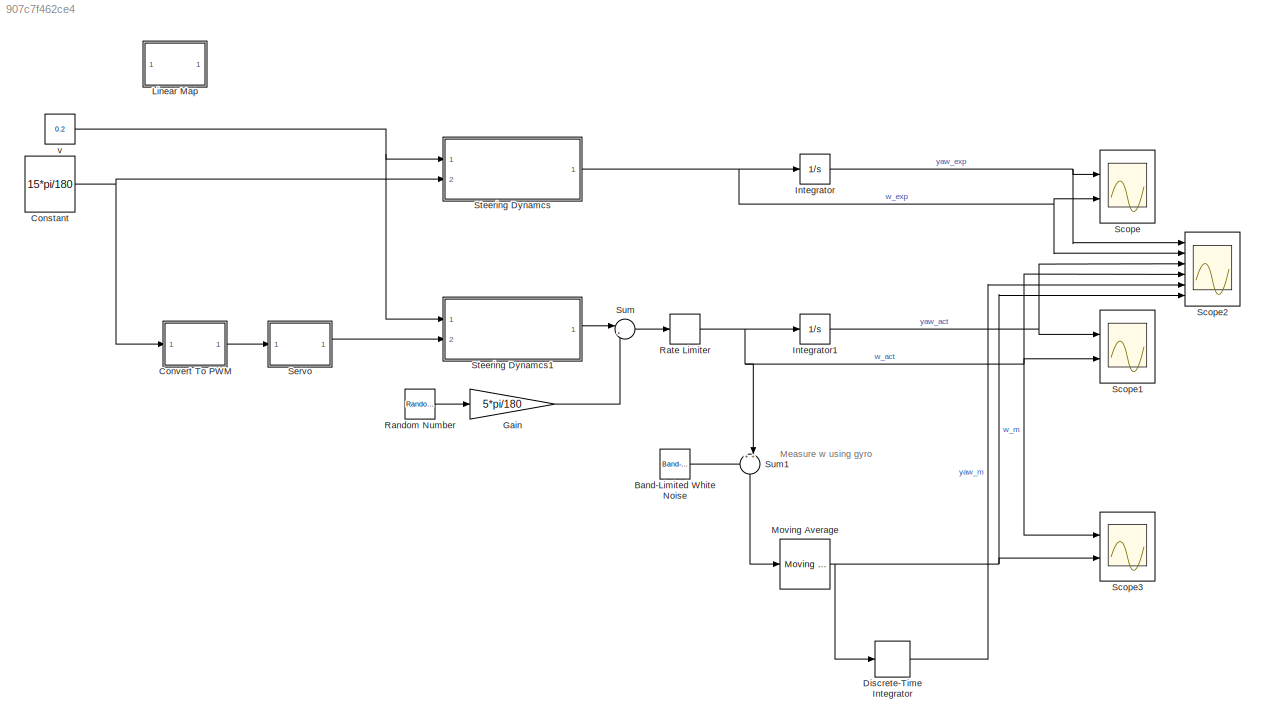
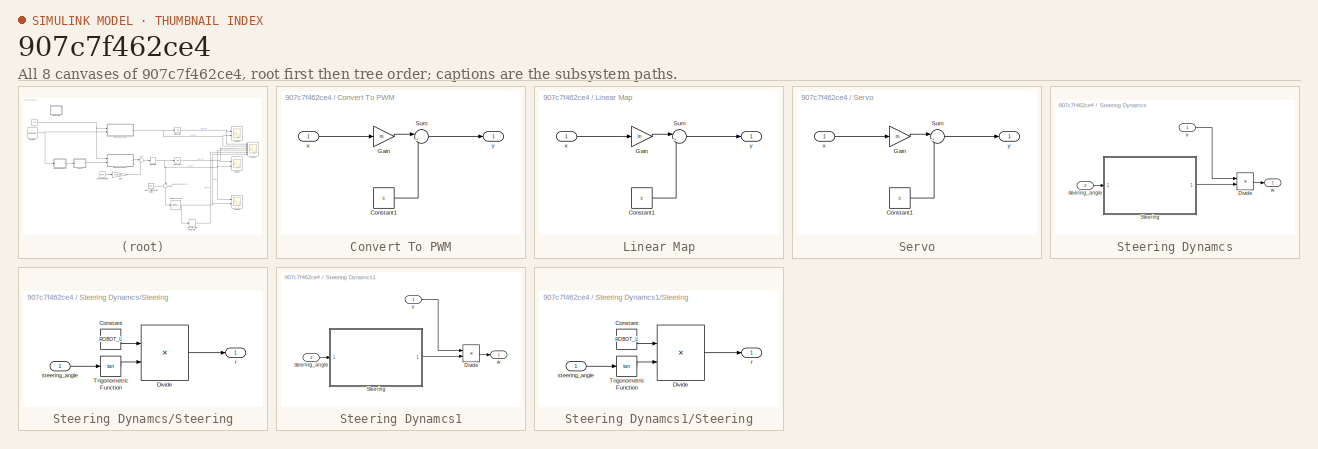
[diagram: thumbnail index - all 8 canvases of the model, root first then tree order]
MODEL slx_907c7f462ce4
KIND model
CONFIG AbsTol = auto
CONFIG EnableMultiTasking = off
CONFIG FixedStep = auto
CONFIG MaxStep = auto
CONFIG MinStep = auto
CONFIG RelTol = 1e-3
CONFIG SampleTimeConstraint = Unconstrained
CONFIG SolverName = VariableStepAuto
CONFIG StartTime = 0.0
CONFIG StopTime = 10.0
WORKSPACE source: mxarray member
WORKSPACE ROBOT_L = 0.14
WORKSPACE c = 0
WORKSPACE m = 1
BLOCK [Reference] Band-Limited White Noise  REF=simulink/Sources/Band-Limited
White Noise
  Ports = [0, 1]
  SourceBlock = simulink/Sources/Band-Limited\nWhite Noise
  SourceProductBaseCode = SL
  SourceType = Band-Limited White Noise.
BLOCK [Constant] Constant
  Value = 15*pi/180
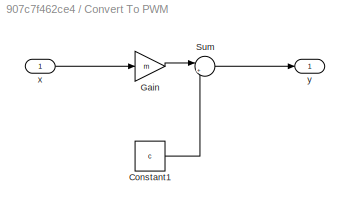
BLOCK [SubSystem] Convert To PWM
  Ports = [1, 1]
  RequestExecContextInheritance = off
BLOCK [Constant] Convert To PWM/Constant1
  Value = c
BLOCK [Gain] Convert To PWM/Gain
  Gain = m
BLOCK [Sum] Convert To PWM/Sum
  Inputs = |++
  Ports = [2, 1]
BLOCK [Inport] Convert To PWM/x
BLOCK [Outport] Convert To PWM/y
BLOCK [DiscreteIntegrator] Discrete-Time Integrator
  ICPrevOutput = DiscIntNeverNeededParam
  ICPrevScaledInput = DiscIntNeverNeededParam
  InitialConditionSetting = Auto
  Ports = [1, 1]
  SampleTime = 0.01
BLOCK [Gain] Gain
  Gain = 5*pi/180
BLOCK [Integrator] Integrator
  Ports = [1, 1]
BLOCK [Integrator] Integrator1
  Ports = [1, 1]
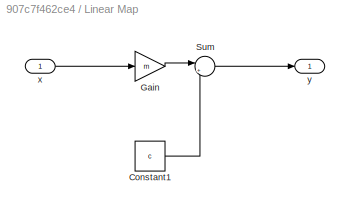
BLOCK [SubSystem] Linear Map
  Ports = [1, 1]
  RequestExecContextInheritance = off
BLOCK [Constant] Linear Map/Constant1
  Value = c
BLOCK [Gain] Linear Map/Gain
  Gain = m
BLOCK [Sum] Linear Map/Sum
  Inputs = |++
  Ports = [2, 1]
BLOCK [Inport] Linear Map/x
BLOCK [Outport] Linear Map/y
BLOCK [Reference] Moving Average  REF=dspstat3/Moving
Average
  Ports = [1, 1]
  SourceBlock = dspstat3/Moving\nAverage
  SourceProductBaseCode = DS
  SourceType = dsp.simulink.MovingAverage
BLOCK [RandomNumber] Random Number
  SampleTime = 0.5
BLOCK [RateLimiter] Rate Limiter
  FallingSlewLimit = -0.5*2*pi
  RisingSlewLimit = 0.5*2*pi
  SampleTimeMode = inherited
BLOCK [Scope] Scope
  Floating = off
  NumInputPorts = 2
  Ports = [2]
  ScopeSpecificationString = Simulink.scopes.TimeScopeBlockCfg('CurrentConfiguration', extmgr.ConfigurationSet(extmgr.Configuration('Core','General UI',true),extmgr.Configuration('Core','Source UI',true),extmgr.Configuration('Sources','WiredSimulink',true),extmgr.Configuration('Visuals','Time Domain',true,'SerializedDisplays',{struct('MinYLimReal','-0.47848','MaxYLimReal','4.30633','YLabelReal','','MinYLimMag','0.00000','MaxY...<+1363ch>
BLOCK [Scope] Scope1
  Floating = off
  NumInputPorts = 2
  Ports = [2]
  ScopeSpecificationString = Simulink.scopes.TimeScopeBlockCfg('CurrentConfiguration', extmgr.ConfigurationSet(extmgr.Configuration('Core','General UI',true),extmgr.Configuration('Core','Source UI',true),extmgr.Configuration('Sources','WiredSimulink',true,'DataLoggingVariableName','ScopeData1'),extmgr.Configuration('Visuals','Time Domain',true,'SerializedDisplays',{struct('MinYLimReal','-0.55545','MaxYLimReal','4.99902','YLab...<+1762ch>
BLOCK [Scope] Scope2
  Floating = off
  NumInputPorts = 6
  Ports = [6]
  ScopeSpecificationString = Simulink.scopes.TimeScopeBlockCfg('CurrentConfiguration', extmgr.ConfigurationSet(extmgr.Configuration('Core','General UI',true),extmgr.Configuration('Core','Source UI',true),extmgr.Configuration('Sources','WiredSimulink',true,'DataLoggingVariableName','ScopeData2'),extmgr.Configuration('Visuals','Time Domain',true,'SerializedDisplays',{struct('MinYLimReal','-1.00876','MaxYLimReal','5.04939','YLab...<+1457ch>
BLOCK [Scope] Scope3
  Floating = off
  NumInputPorts = 2
  Ports = [2]
  ScopeSpecificationString = Simulink.scopes.TimeScopeBlockCfg('CurrentConfiguration', extmgr.ConfigurationSet(extmgr.Configuration('Core','General UI',true),extmgr.Configuration('Core','Source UI',true),extmgr.Configuration('Sources','WiredSimulink',true,'DataLoggingVariableName','ScopeData3'),extmgr.Configuration('Visuals','Time Domain',true,'SerializedDisplays',{struct('MinYLimReal','-0.61771','MaxYLimReal','1.52993','YLab...<+1370ch>
BLOCK [SubSystem] Servo
  Ports = [1, 1]
  RequestExecContextInheritance = off
BLOCK [Constant] Servo/Constant1
  Value = c
BLOCK [Gain] Servo/Gain
  Gain = m
BLOCK [Sum] Servo/Sum
  Inputs = |++
  Ports = [2, 1]
BLOCK [Inport] Servo/x
BLOCK [Outport] Servo/y
BLOCK [SubSystem] Steering Dynamcs
  Ports = [2, 1]
  RequestExecContextInheritance = off
BLOCK [Product] Steering Dynamcs/Divide
  Inputs = */
  Ports = [2, 1]
BLOCK [SubSystem] Steering Dynamcs/Steering
  Ports = [1, 1]
  RequestExecContextInheritance = off
BLOCK [Constant] Steering Dynamcs/Steering/Constant
  Value = ROBOT_L
BLOCK [Product] Steering Dynamcs/Steering/Divide
  Inputs = */
  Ports = [2, 1]
BLOCK [Trigonometry] Steering Dynamcs/Steering/Trigonometric Function
  NameLocation = right
  Operator = tan
  Ports = [1, 1]
BLOCK [Outport] Steering Dynamcs/Steering/r
BLOCK [Inport] Steering Dynamcs/Steering/steering_angle
BLOCK [Inport] Steering Dynamcs/steering_angle
  Port = 2
BLOCK [Inport] Steering Dynamcs/v
BLOCK [Outport] Steering Dynamcs/w
BLOCK [SubSystem] Steering Dynamcs1
  Ports = [2, 1]
  RequestExecContextInheritance = off
BLOCK [Product] Steering Dynamcs1/Divide
  Inputs = */
  Ports = [2, 1]
BLOCK [SubSystem] Steering Dynamcs1/Steering
  Ports = [1, 1]
  RequestExecContextInheritance = off
BLOCK [Constant] Steering Dynamcs1/Steering/Constant
  Value = ROBOT_L
BLOCK [Product] Steering Dynamcs1/Steering/Divide
  Inputs = */
  Ports = [2, 1]
BLOCK [Trigonometry] Steering Dynamcs1/Steering/Trigonometric Function
  NameLocation = right
  Operator = tan
  Ports = [1, 1]
BLOCK [Outport] Steering Dynamcs1/Steering/r
BLOCK [Inport] Steering Dynamcs1/Steering/steering_angle
BLOCK [Inport] Steering Dynamcs1/steering_angle
  Port = 2
BLOCK [Inport] Steering Dynamcs1/v
BLOCK [Outport] Steering Dynamcs1/w
BLOCK [Sum] Sum
  Inputs = |++
  Ports = [2, 1]
BLOCK [Sum] Sum1
  Inputs = ++|
  NameLocation = left
  Ports = [2, 1]
BLOCK [Constant] v
  Value = 0.2
ANNOTATION (root): Measure w using gyro
LINE Band-Limited White Noise:1 -> Sum1:1
NET Constant:1 -> Convert To PWM:1, Steering Dynamcs:2
LINE Convert To PWM/Constant1:1 -> Convert To PWM/Sum:2
LINE Convert To PWM/Gain:1 -> Convert To PWM/Sum:1
LINE Convert To PWM/Sum:1 -> Convert To PWM/y:1
LINE Convert To PWM/x:1 -> Convert To PWM/Gain:1
LINE Convert To PWM:1 -> Servo:1
LINE Discrete-Time Integrator:1 -> Scope2:5
LINE Gain:1 -> Sum:2
NET Integrator1:1 -> Scope1:1, Scope2:3
NET Integrator:1 -> Scope2:1, Scope:1
LINE Linear Map/Constant1:1 -> Linear Map/Sum:2
LINE Linear Map/Gain:1 -> Linear Map/Sum:1
LINE Linear Map/Sum:1 -> Linear Map/y:1
LINE Linear Map/x:1 -> Linear Map/Gain:1
NET Moving Average:1 -> Discrete-Time Integrator:1, Scope2:6, Scope3:2
LINE Random Number:1 -> Gain:1
NET Rate Limiter:1 -> Integrator1:1, Scope1:2, Scope2:4, Scope3:1, Sum1:2
LINE Servo/Constant1:1 -> Servo/Sum:2
LINE Servo/Gain:1 -> Servo/Sum:1
LINE Servo/Sum:1 -> Servo/y:1
LINE Servo/x:1 -> Servo/Gain:1
LINE Servo:1 -> Steering Dynamcs1:2
LINE Steering Dynamcs/Divide:1 -> Steering Dynamcs/w:1
LINE Steering Dynamcs/Steering/Constant:1 -> Steering Dynamcs/Steering/Divide:1
LINE Steering Dynamcs/Steering/Divide:1 -> Steering Dynamcs/Steering/r:1
LINE Steering Dynamcs/Steering/Trigonometric Function:1 -> Steering Dynamcs/Steering/Divide:2
LINE Steering Dynamcs/Steering/steering_angle:1 -> Steering Dynamcs/Steering/Trigonometric Function:1
LINE Steering Dynamcs/Steering:1 -> Steering Dynamcs/Divide:2
LINE Steering Dynamcs/steering_angle:1 -> Steering Dynamcs/Steering:1
LINE Steering Dynamcs/v:1 -> Steering Dynamcs/Divide:1
LINE Steering Dynamcs1/Divide:1 -> Steering Dynamcs1/w:1
LINE Steering Dynamcs1/Steering/Constant:1 -> Steering Dynamcs1/Steering/Divide:1
LINE Steering Dynamcs1/Steering/Divide:1 -> Steering Dynamcs1/Steering/r:1
LINE Steering Dynamcs1/Steering/Trigonometric Function:1 -> Steering Dynamcs1/Steering/Divide:2
LINE Steering Dynamcs1/Steering/steering_angle:1 -> Steering Dynamcs1/Steering/Trigonometric Function:1
LINE Steering Dynamcs1/Steering:1 -> Steering Dynamcs1/Divide:2
LINE Steering Dynamcs1/steering_angle:1 -> Steering Dynamcs1/Steering:1
LINE Steering Dynamcs1/v:1 -> Steering Dynamcs1/Divide:1
LINE Steering Dynamcs1:1 -> Sum:1
NET Steering Dynamcs:1 -> Integrator:1, Scope2:2, Scope:2
LINE Sum1:1 -> Moving Average:1
LINE Sum:1 -> Rate Limiter:1
NET v:1 -> Steering Dynamcs1:1, Steering Dynamcs:1
note: NET lines group one-source signal fan-out (src -> all destinations, sorted); 1:1 wires keep LINE
